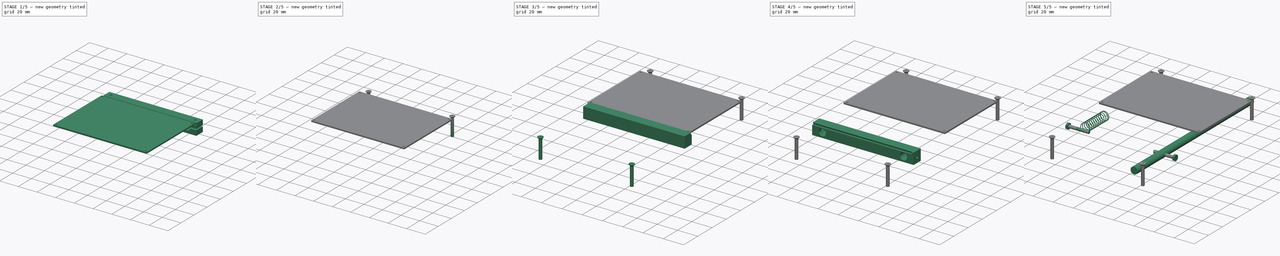
[diagram: build sequence overview — one tinted view per stage of 5, left to right]
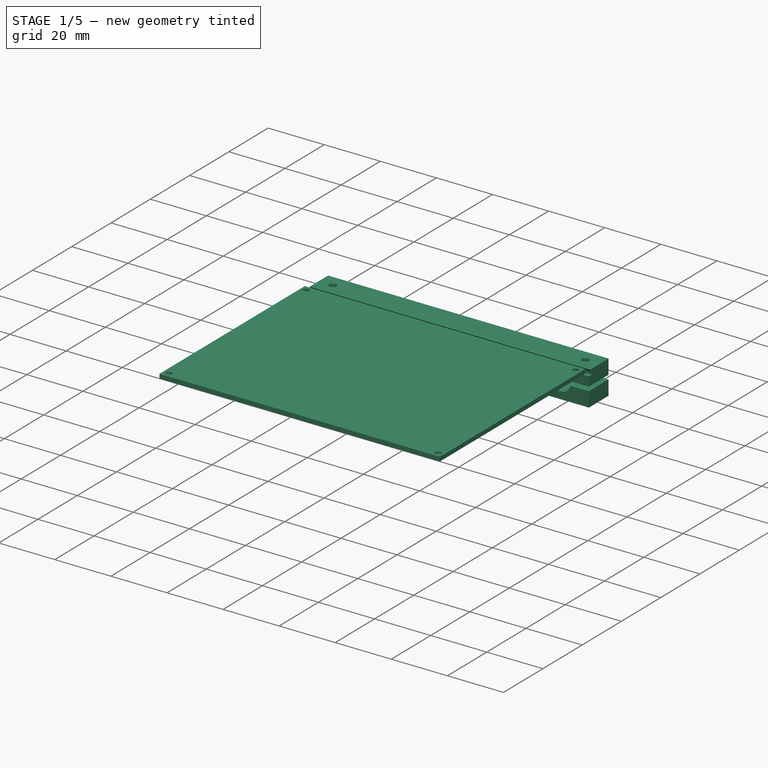
[diagram: stage 1 of 5 — iso view after this stage's code; geometry added in this stage tinted green]
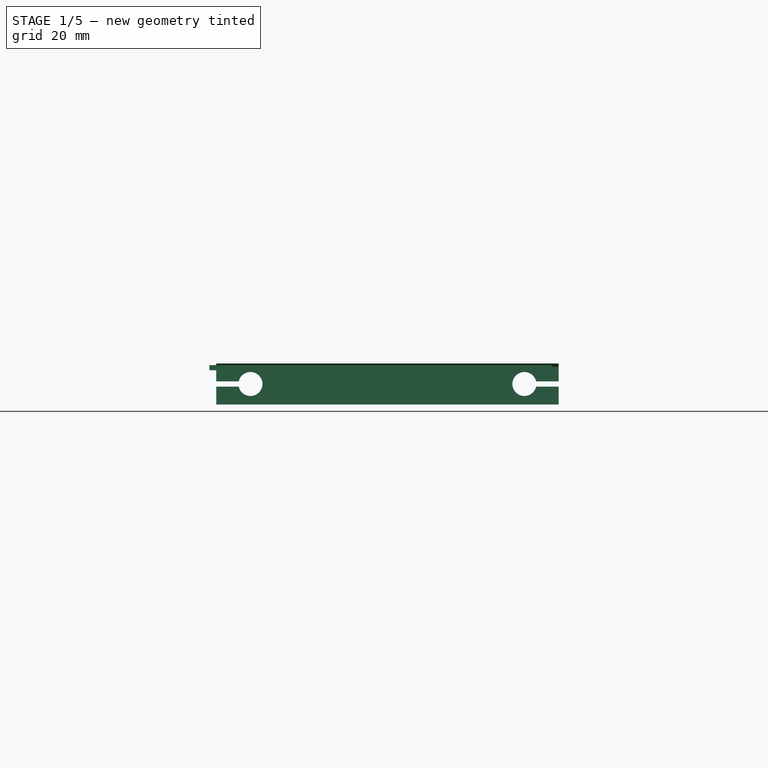
[diagram: stage 1 of 5 — front view after this stage's code; geometry added in this stage tinted green]
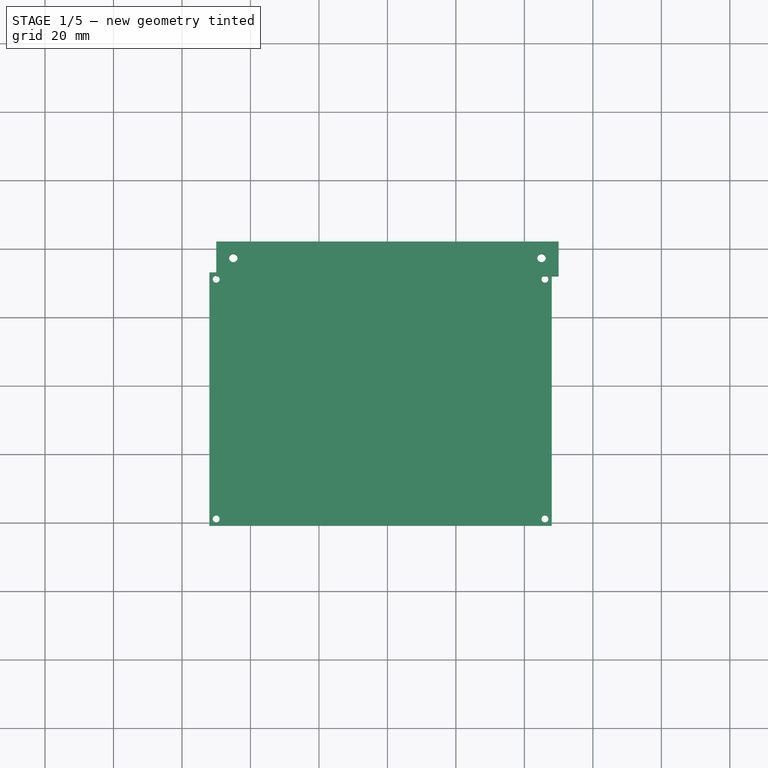
[diagram: stage 1 of 5 — top view after this stage's code; geometry added in this stage tinted green]
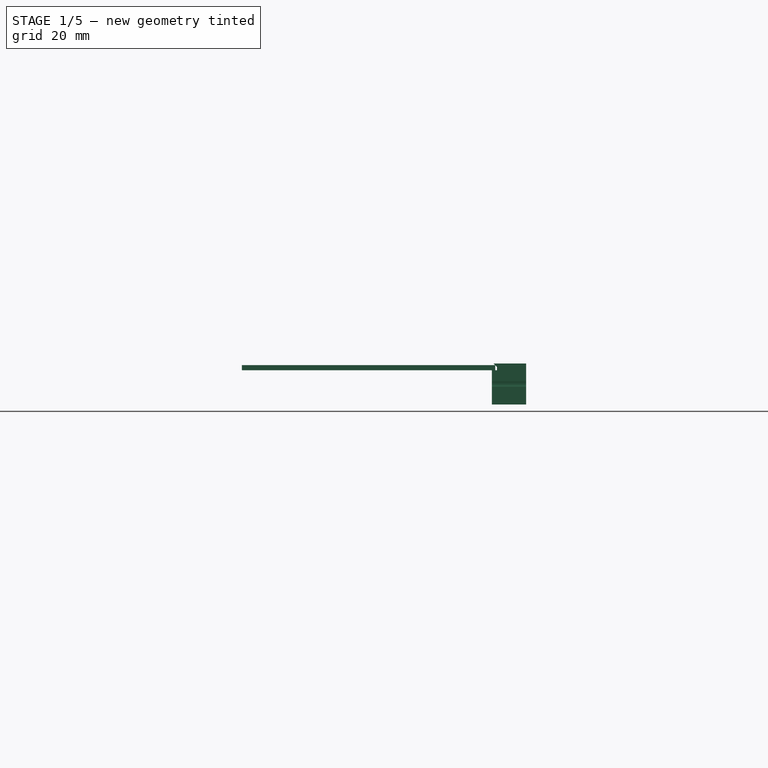
[diagram: stage 1 of 5 — right view after this stage's code; geometry added in this stage tinted green]
FCSTD DOCUMENT  (FreeCAD 0.15R4671 (Git))
Label: table-pcb-holder
License: CreativeCommons Attribution-ShareAlike
LicenseURL: http://creativecommons.org/licenses/by-sa/4.0/
objects: Sketcher::SketchObject×10, PartDesign::Pocket×6, Part::FeaturePython×6, PartDesign::Pad×4, Part::Mirroring×4, Part::Cylinder×1, PartDesign::Chamfer×1, PartDesign::LinearPattern×1, Part::Feature×1, Part::Box×1
note: 45 computed .brp shape members not serialized (recipe doc carries the construction recipe); baked Part::Feature solids carry a one-line shape summary decoded from their .brp

FEATURE [Sketcher::SketchObject] Sketch004  label="fixed"
  Placement = pos=(0,72,0) rot=(0.57735,0.57735,0.57735;2.0944rad)
  sketch-geometry (7):
    g0: LineSegment StartX=0 StartY=10 StartZ=0 EndX=1.5 EndY=10 EndZ=0
    g1: LineSegment StartX=1.5 StartY=10 StartZ=0 EndX=1.5 EndY=11 EndZ=0
    g2: LineSegment StartX=1.5 StartY=11 StartZ=0 EndX=0.5 EndY=12 EndZ=0
    g3: LineSegment StartX=0.5 StartY=12 StartZ=0 EndX=10 EndY=12 EndZ=0
    g4: LineSegment StartX=10 StartY=12 StartZ=0 EndX=10 EndY=0 EndZ=0
    g5: LineSegment StartX=10 StartY=0 StartZ=0 EndX=0 EndY=0 EndZ=0
    g6: LineSegment StartX=0 StartY=0 StartZ=0 EndX=0 EndY=10 EndZ=0
  constraints (21):
    c: Horizontal(g0)
    c: Coincident(g0,g1)
    c: Vertical(g1)
    c: Coincident(g1,g2)
    c: Coincident(g2,g3)
    c: Horizontal(g3)
    c: Coincident(g3,g4)
    c: Vertical(g4)
    c: Coincident(g4,g5)
    c: Horizontal(g5)
    c: Coincident(g5,g6)
    c: Coincident(g6,g0)
    c: Vertical(g6)
    c: DistanceX(g5) = -10
    c: DistanceX(g0) = 1.5
    c: DistanceY(g1) = 1
    c: DistanceX(g2,g1) = 1
    c: DistanceY(g2,g1) = -1
    c: DistanceY(g5) = 0
    c: DistanceY(g6) = 10
    c: DistanceX(g5) = 0
FEATURE [PartDesign::Pad] Pad003  label="fixed"
  Length = 100
  Length2 = 100
  Midplane = true
  Placement = pos=(0,72,0) rot=(0.57735,0.57735,0.57735;2.0944rad)
  Sketch = -> Sketch004
  Type = 0
FEATURE [Sketcher::SketchObject] Sketch006
  ExternalGeometry = -> [Pad003]
  Placement = pos=(0,82,0) rot=(0.57735,0.57735,0.57735;4.18879rad)
  Support = -> Pad003 [Face5]
  sketch-geometry (11):
    g0: ArcOfCircle CenterX=6 CenterY=40 CenterZ=0 NormalX=0 NormalY=0 NormalZ=1 Radius=3.5 StartAngle=1.78676 EndAngle=7.63802
    g1: ArcOfCircle CenterX=6 CenterY=-40 CenterZ=0 NormalX=0 NormalY=0 NormalZ=1 Radius=3.5 StartAngle=4.92835 EndAngle=10.7796
    g2: LineSegment [constr] StartX=12 StartY=50 StartZ=0 EndX=6 EndY=40 EndZ=0
    g3: LineSegment [constr] StartX=6 StartY=40 StartZ=0 EndX=6 EndY=-40 EndZ=0
    g4: LineSegment [constr] StartX=6 StartY=-40 StartZ=0 EndX=12 EndY=-50 EndZ=0
    g5: LineSegment StartX=5.25 StartY=50.4187 StartZ=0 EndX=6.75 EndY=50.4187 EndZ=0
    g6: LineSegment StartX=6.75 StartY=50.4187 StartZ=0 EndX=6.75 EndY=43.4187 EndZ=0
    g7: LineSegment StartX=5.25 StartY=43.4187 StartZ=0 EndX=5.25 EndY=50.4187 EndZ=0
    g8: LineSegment StartX=5.25 StartY=-43.4187 StartZ=0 EndX=5.25 EndY=-50.4187 EndZ=0
    g9: LineSegment StartX=5.25 StartY=-50.4187 StartZ=0 EndX=6.75 EndY=-50.4187 EndZ=0
    g10: LineSegment StartX=6.75 StartY=-50.4187 StartZ=0 EndX=6.75 EndY=-43.4187 EndZ=0
  constraints (32):
    c: Coincident(g2,g0)
    c: Coincident(g2,g3)
    c: Coincident(g3,g1)
    c: Vertical(g3)
    c: Coincident(g3,g4)
    c: Equal(g4,g2)
    c: Equal(g0,g1)
    c: Radius(g0) = 3.5
    c: Coincident(g2,g-3)
    c: Coincident(g4,g-3)
    c: DistanceY(g1,g4) = -10
    c: Distance(g0,g-3) = 6
    c: Coincident(g5,g6)
    c: Coincident(g7,g5)
    c: Horizontal(g5)
    c: Vertical(g6)
    c: Vertical(g7)
    c: DistanceX(g5) = 1.5
    c: Coincident(g0,g7)
    c: Coincident(g0,g6)
    c: DistanceY(g0,g0) = 0
    c: DistanceY(g6) = -7
    c: Vertical(g8)
    c: Coincident(g8,g9)
    c: Horizontal(g9)
    c: Coincident(g9,g10)
    c: Vertical(g10)
    c: Equal(g9,g5)
    c: Equal(g8,g7)
    c: Coincident(g1,g10)
    c: Coincident(g1,g8)
    c: DistanceY(g1,g1) = 0
FEATURE [PartDesign::Pocket] Pocket002
  Length = 5
  Placement = pos=(0,72,0) rot=(0.57735,0.57735,0.57735;2.0944rad)
  Sketch = -> Sketch006
  Type = 1
FEATURE [Sketcher::SketchObject] Sketch
  ExternalGeometry = -> [Pocket002]
  Placement = pos=(0,72,12) rot=(0,0,-1;1.5708rad)
  Support = -> Pocket002 [Face17]
  sketch-geometry (6):
    g0: Circle CenterX=-5.25 CenterY=45 CenterZ=0 NormalX=0 NormalY=0 NormalZ=1 Radius=1.25
    g1: Circle CenterX=-5.25 CenterY=-45 CenterZ=0 NormalX=0 NormalY=0 NormalZ=1 Radius=1.25
    g2: LineSegment [constr] StartX=-10 StartY=50 StartZ=0 EndX=-5.25 EndY=45 EndZ=0
    g3: LineSegment [constr] StartX=-5.25 StartY=45 StartZ=0 EndX=-5.25 EndY=-45 EndZ=0
    g4: LineSegment [constr] StartX=-5.25 StartY=-45 StartZ=0 EndX=-0.5 EndY=-50 EndZ=0
    g5: LineSegment [constr] StartX=-10 StartY=-50 StartZ=0 EndX=-5.25 EndY=-45 EndZ=0
  constraints (14):
    c: Equal(g1,g0)
    c: Coincident(g-3,g2)
    c: Coincident(g2,g3)
    c: Coincident(g3,g1)
    c: Vertical(g3)
    c: Coincident(g3,g4)
    c: Coincident(g4,g-4)
    c: Coincident(g0,g2)
    c: Radius(g0) = 1.25
    c: Coincident(g5,g-4)
    c: Coincident(g5,g1)
    c: Equal(g5,g4)
    c: Equal(g4,g2)
    c: Distance(g1,g-4) = 5
FEATURE [PartDesign::Pocket] Pocket
  Length = 5
  Placement = pos=(0,72,0) rot=(0.57735,0.57735,0.57735;2.0944rad)
  Sketch = -> Sketch
  Type = 1
FEATURE [Part::Box] Box  label="pcb"
  Height = 1.5
  Length = 100
  Placement = pos=(-52,-1,10) rot=(0,0,1;0rad)
  Width = 74
FEATURE [Sketcher::SketchObject] Sketch011
  ExternalGeometry = -> [Box]
  Placement = pos=(-52,-1,11.5) rot=(0,0,1;0rad)
  Support = -> Box [Face6]
  sketch-geometry (11):
    g0: LineSegment [constr] StartX=2 StartY=72 StartZ=0 EndX=98 EndY=72 EndZ=0
    g1: LineSegment [constr] StartX=98 StartY=72 StartZ=0 EndX=98 EndY=2 EndZ=0
    g2: LineSegment [constr] StartX=98 StartY=2 StartZ=0 EndX=2 EndY=2 EndZ=0
    g3: LineSegment [constr] StartX=2 StartY=2 StartZ=0 EndX=2 EndY=72 EndZ=0
    g4: LineSegment [constr] StartX=0 StartY=74 StartZ=0 EndX=2 EndY=72 EndZ=0
    g5: LineSegment [constr] StartX=100 StartY=74 StartZ=0 EndX=98 EndY=72 EndZ=0
    g6: LineSegment [constr] StartX=100 StartY=0 StartZ=0 EndX=98 EndY=2 EndZ=0
    g7: Circle CenterX=98 CenterY=72 CenterZ=0 NormalX=0 NormalY=0 NormalZ=1 Radius=1
    g8: Circle CenterX=2 CenterY=2 CenterZ=0 NormalX=0 NormalY=0 NormalZ=1 Radius=1
    g9: Circle CenterX=98 CenterY=2 CenterZ=0 NormalX=0 NormalY=0 NormalZ=1 Radius=1
    g10: Circle CenterX=2 CenterY=72 CenterZ=0 NormalX=0 NormalY=0 NormalZ=1 Radius=1
  constraints (26):
    c: Coincident(g0,g1)
    c: Coincident(g1,g2)
    c: Coincident(g2,g3)
    c: Coincident(g3,g0)
    c: Horizontal(g0)
    c: Horizontal(g2)
    c: Vertical(g1)
    c: Vertical(g3)
    c: Coincident(g4,g-4)
    c: Coincident(g4,g0)
    c: Coincident(g5,g-3)
    c: Coincident(g5,g0)
    c: Coincident(g6,g-3)
    c: Coincident(g6,g1)
    c: Equal(g4,g5)
    c: Equal(g5,g6)
    c: Distance(g0,g-3) = 2
    c: DistanceY(g0,g5) = 2
    c: Coincident(g7,g0)
    c: Radius(g7) = 1
    c: Coincident(g8,g2)
    c: Coincident(g10,g0)
    c: Equal(g10,g8)
    c: Equal(g8,g9)
    c: Equal(g9,g7)
    c: Coincident(g9,g1)
FEATURE [PartDesign::Pocket] Pocket005
  Length = 5
  Placement = pos=(-52,-1,10) rot=(0,0,1;0rad)
  Sketch = -> Sketch011
  Type = 1
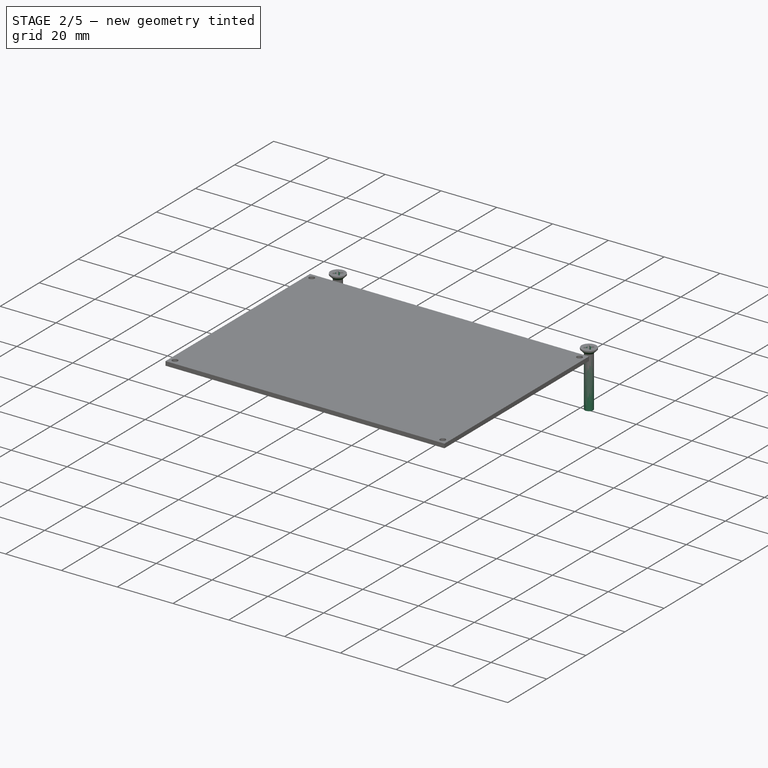
[diagram: stage 2 of 5 — iso view after this stage's code; geometry added in this stage tinted green]
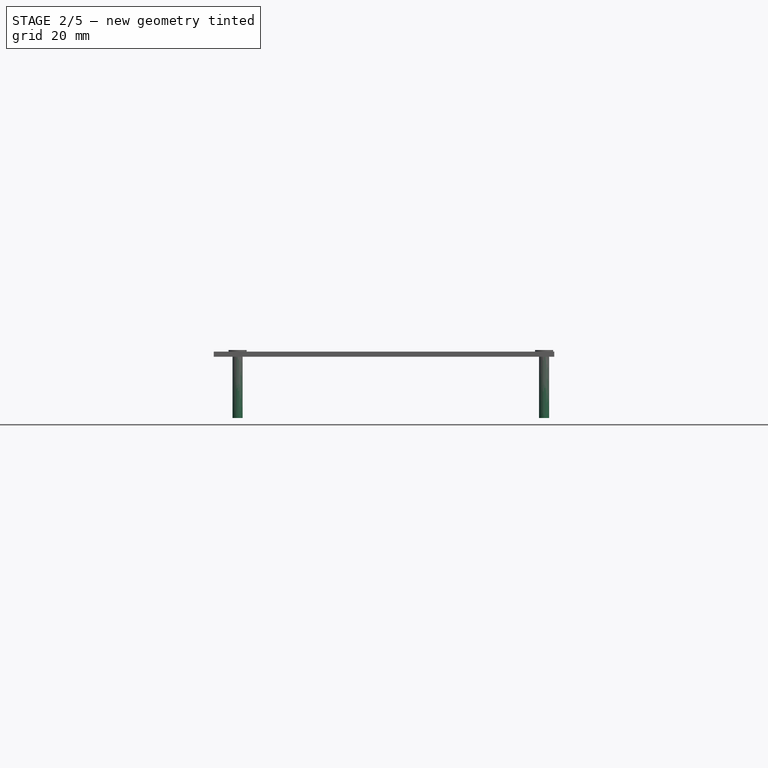
[diagram: stage 2 of 5 — front view after this stage's code; geometry added in this stage tinted green]
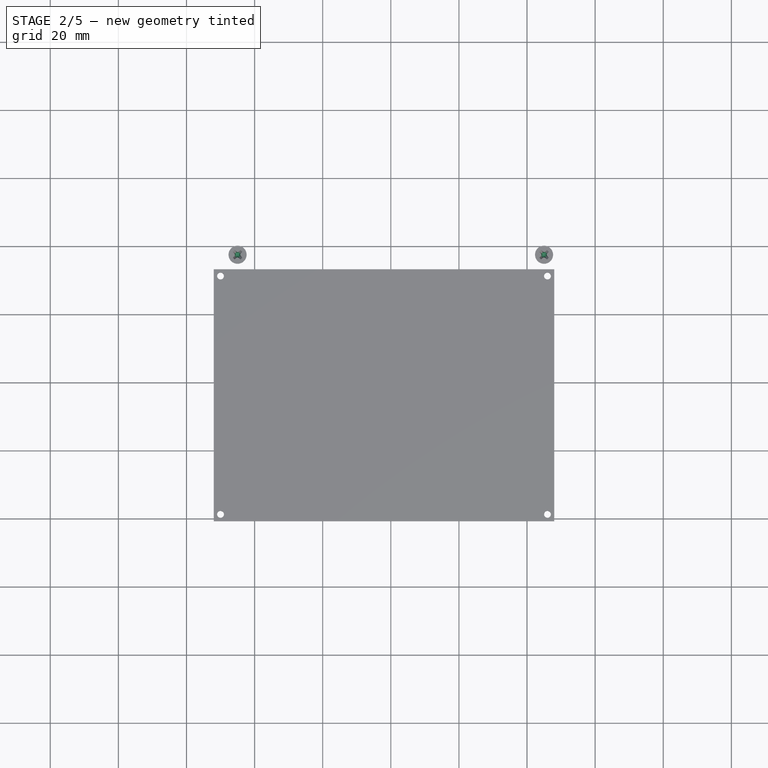
[diagram: stage 2 of 5 — top view after this stage's code; geometry added in this stage tinted green]
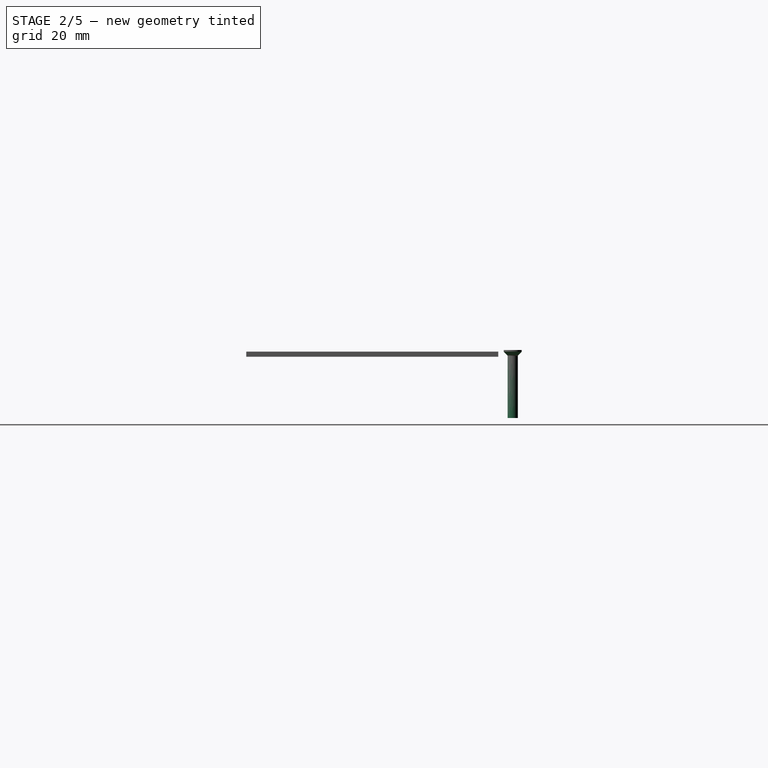
[diagram: stage 2 of 5 — right view after this stage's code; geometry added in this stage tinted green]
FEATURE [Sketcher::SketchObject] Sketch007
  ExternalGeometry = -> [Pocket]
  Placement = pos=(0,72,12) rot=(0,0,-1;1.5708rad)
  Support = -> Pocket [Face17]
  sketch-geometry (2):
    g0: Circle CenterX=-5.25 CenterY=-45 CenterZ=0 NormalX=0 NormalY=0 NormalZ=1 Radius=1.6
    g1: Circle CenterX=-5.25 CenterY=45 CenterZ=0 NormalX=0 NormalY=0 NormalZ=1 Radius=1.6
  constraints (4):
    c: Coincident(g0,g-3)
    c: Coincident(g1,g-4)
    c: Equal(g1,g0)
    c: Radius(g1) = 1.6
FEATURE [PartDesign::Pocket] Pocket003
  Length = 6
  Placement = pos=(0,72,0) rot=(0.57735,0.57735,0.57735;2.0944rad)
  Sketch = -> Sketch007
  Type = 0
FEATURE [PartDesign::Chamfer] Chamfer
  Base = -> Pocket003 [Edge60,Edge61]
  Placement = pos=(0,72,0) rot=(0.57735,0.57735,0.57735;2.0944rad)
  Size = 1.5
FEATURE [Sketcher::SketchObject] Sketch009
  ExternalGeometry = -> [Chamfer]
  Placement = pos=(50,72,0) rot=(0.57735,0.57735,0.57735;2.0944rad)
  Support = -> Chamfer [Face5]
  sketch-geometry (4):
    g0: LineSegment StartX=0 StartY=10 StartZ=0 EndX=1.5 EndY=10 EndZ=0
    g1: LineSegment StartX=1.5 StartY=10 StartZ=0 EndX=1.5 EndY=12 EndZ=0
    g2: LineSegment StartX=1.5 StartY=12 StartZ=0 EndX=0 EndY=12 EndZ=0
    g3: LineSegment StartX=0 StartY=12 StartZ=0 EndX=0 EndY=10 EndZ=0
  constraints (11):
    c: Coincident(g0,g1)
    c: Coincident(g1,g2)
    c: Coincident(g2,g3)
    c: Coincident(g3,g0)
    c: Horizontal(g0)
    c: Horizontal(g2)
    c: Vertical(g1)
    c: Vertical(g3)
    c: Coincident(g0,g-3)
    c: DistanceY(g1) = 2
    c: Coincident(g0,g-3)
FEATURE [PartDesign::Pad] Pad
  Length = 2
  Length2 = 100
  Placement = pos=(0,72,0) rot=(0.57735,0.57735,0.57735;2.0944rad)
  Reversed = true
  Sketch = -> Sketch009
  Type = 0
FEATURE [Part::FeaturePython] Screw004  label="M3x20-Screw"  # Fasteners workbench fastener (typed FeaturePython)
  Placement = pos=(-45,77.25,12) rot=(0,0,1;0rad)
  baseObject = -> Pad [Edge65]
  diameter = 4
  invert = false
  length = 8
  matchOuter = false
  offset = 0
  thread = false
  type = 17
FEATURE [Part::FeaturePython] Screw005  label="M3x20-Screw"  # Fasteners workbench fastener (typed FeaturePython)
  Placement = pos=(45,77.25,12) rot=(0,0,1;0rad)
  baseObject = -> Pad [Edge2]
  diameter = 4
  invert = false
  length = 8
  matchOuter = false
  offset = 0
  thread = false
  type = 17
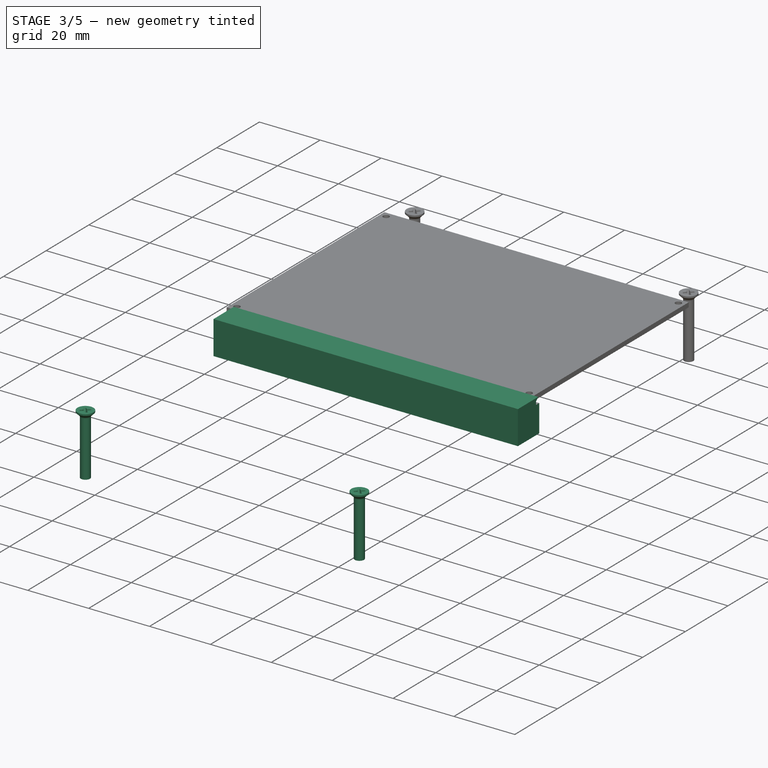
[diagram: stage 3 of 5 — iso view after this stage's code; geometry added in this stage tinted green]
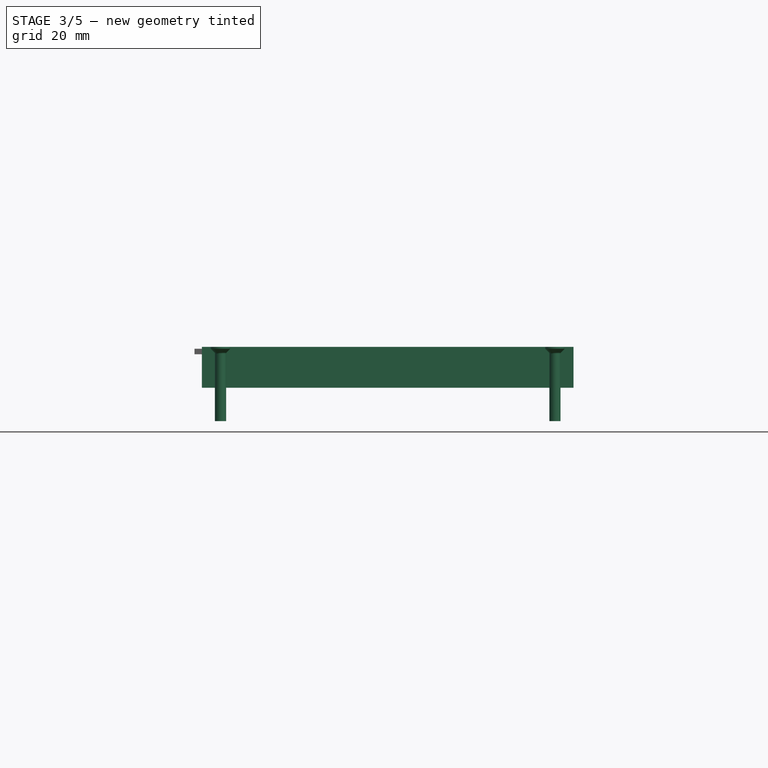
[diagram: stage 3 of 5 — front view after this stage's code; geometry added in this stage tinted green]
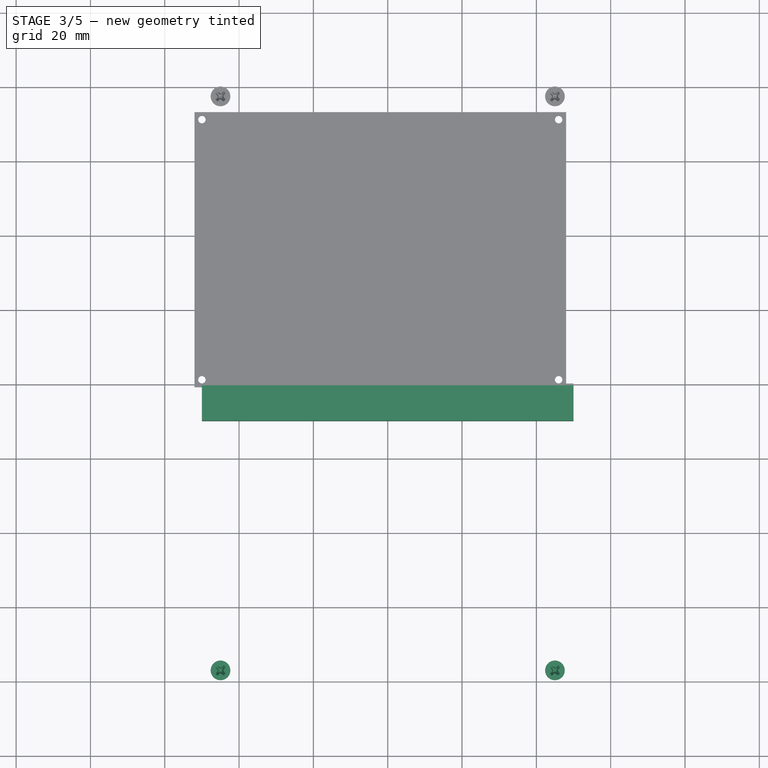
[diagram: stage 3 of 5 — top view after this stage's code; geometry added in this stage tinted green]
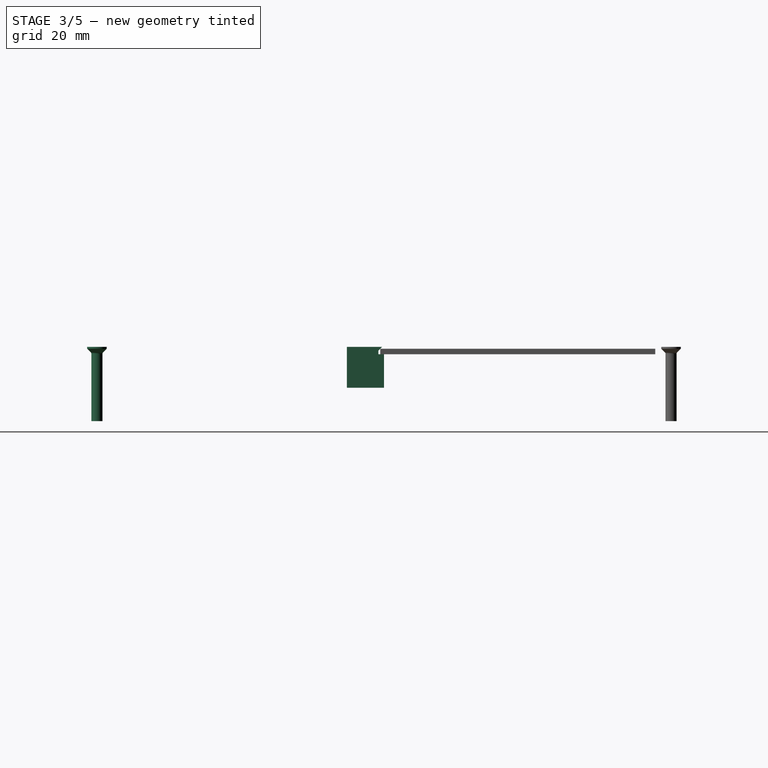
[diagram: stage 3 of 5 — right view after this stage's code; geometry added in this stage tinted green]
FEATURE [Sketcher::SketchObject] Sketch003  label="moving"
  Placement = pos=(0,0,0) rot=(0.57735,0.57735,0.57735;2.0944rad)
  sketch-geometry (7):
    g0: LineSegment StartX=-10 StartY=1 StartZ=0 EndX=-10 EndY=12 EndZ=0
    g1: LineSegment StartX=-10 StartY=12 StartZ=0 EndX=-0.5 EndY=12 EndZ=0
    g2: LineSegment StartX=-0.5 StartY=12 StartZ=0 EndX=-1.5 EndY=11 EndZ=0
    g3: LineSegment StartX=-1.5 StartY=11 StartZ=0 EndX=-1.5 EndY=10 EndZ=0
    g4: LineSegment StartX=-1.5 StartY=10 StartZ=0 EndX=0 EndY=10 EndZ=0
    g5: LineSegment StartX=0 StartY=10 StartZ=0 EndX=0 EndY=1 EndZ=0
    g6: LineSegment StartX=0 StartY=1 StartZ=0 EndX=-10 EndY=1 EndZ=0
  constraints (21):
    c: Vertical(g0)
    c: Coincident(g0,g1)
    c: Horizontal(g1)
    c: Coincident(g1,g2)
    c: Coincident(g2,g3)
    c: Coincident(g3,g4)
    c: Horizontal(g4)
    c: Coincident(g4,g5)
    c: Vertical(g5)
    c: Coincident(g5,g6)
    c: Coincident(g6,g0)
    c: Horizontal(g6)
    c: Vertical(g3)
    c: Distance(g4) = 1.5
    c: DistanceY(g3) = -1
    c: DistanceY(g1,g2) = -1
    c: DistanceX(g1,g2) = -1
    c: DistanceX(g6) = -10
    c: DistanceY(g5) = -9
    c: DistanceY(g4) = 10
    c: DistanceX(g5) = 0
FEATURE [PartDesign::Pad] Pad002  label="moving"
  Length = 100
  Length2 = 100
  Midplane = true
  Placement = pos=(0,0,0) rot=(0.57735,0.57735,0.57735;2.0944rad)
  Sketch = -> Sketch003
  Type = 0
FEATURE [Part::Mirroring] Part__Mirroring001  label="Pad (Mirror #2)"
  Base = (0,0,0)
  Normal = (0,0,1)
  Placement = pos=(0,0,0) rot=(1,0,0;3.14159rad)
  Source = -> Pad
FEATURE [Part::FeaturePython] Screw002  label="M3x20-Screw"  # Fasteners workbench fastener (typed FeaturePython)
  Placement = pos=(45,-77.25,12) rot=(0,0,1;0rad)
  baseObject = -> Part__Mirroring001 [Edge2]
  diameter = 4
  invert = true
  length = 8
  matchOuter = false
  offset = 0
  thread = false
  type = 17
FEATURE [Part::FeaturePython] Screw003  label="M3x20-Screw"  # Fasteners workbench fastener (typed FeaturePython)
  Placement = pos=(-45,-77.25,12) rot=(0,0,1;0rad)
  baseObject = -> Part__Mirroring001 [Edge65]
  diameter = 4
  invert = true
  length = 8
  matchOuter = false
  offset = 0
  thread = false
  type = 17
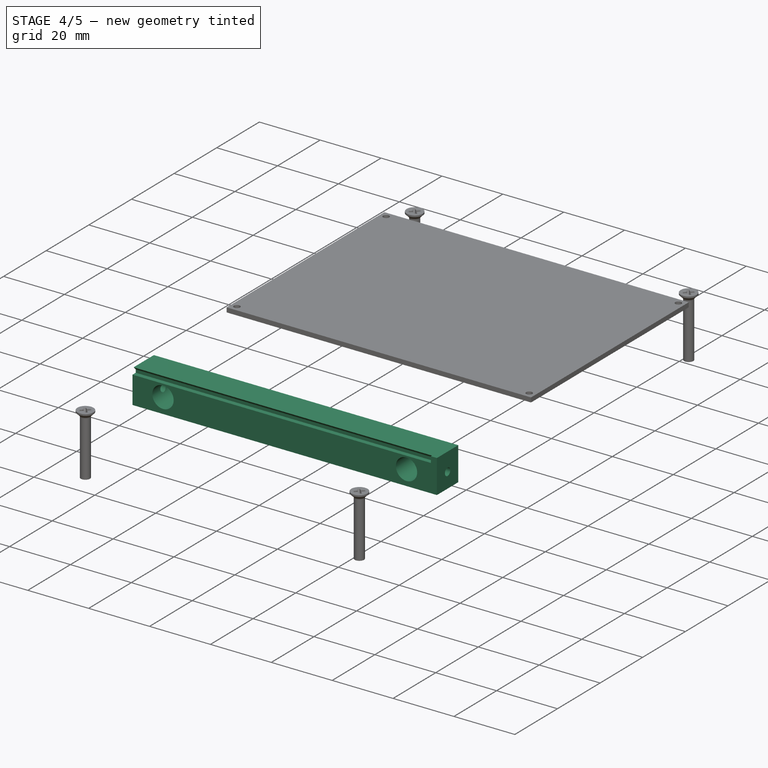
[diagram: stage 4 of 5 — iso view after this stage's code; geometry added in this stage tinted green]
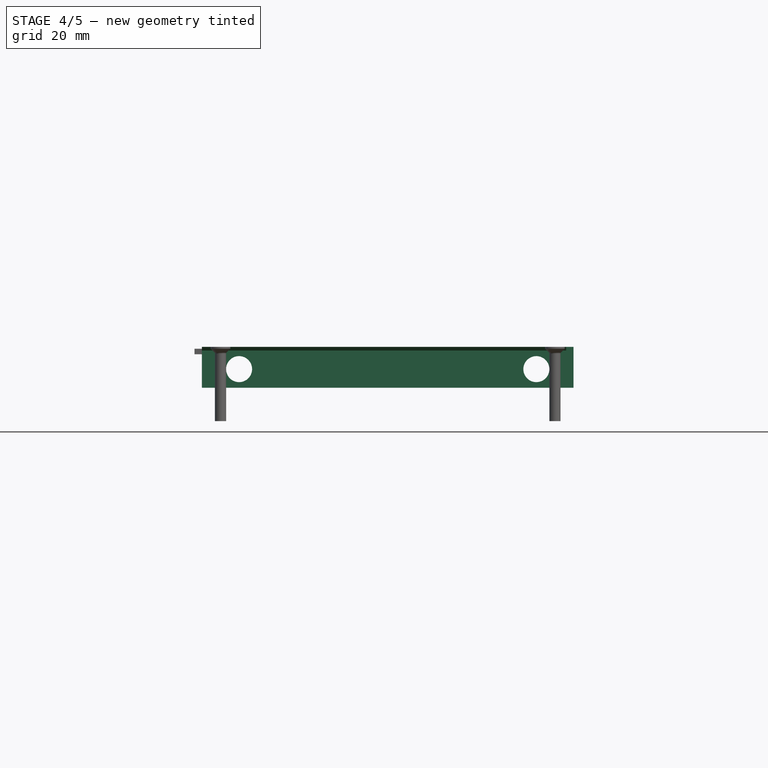
[diagram: stage 4 of 5 — front view after this stage's code; geometry added in this stage tinted green]
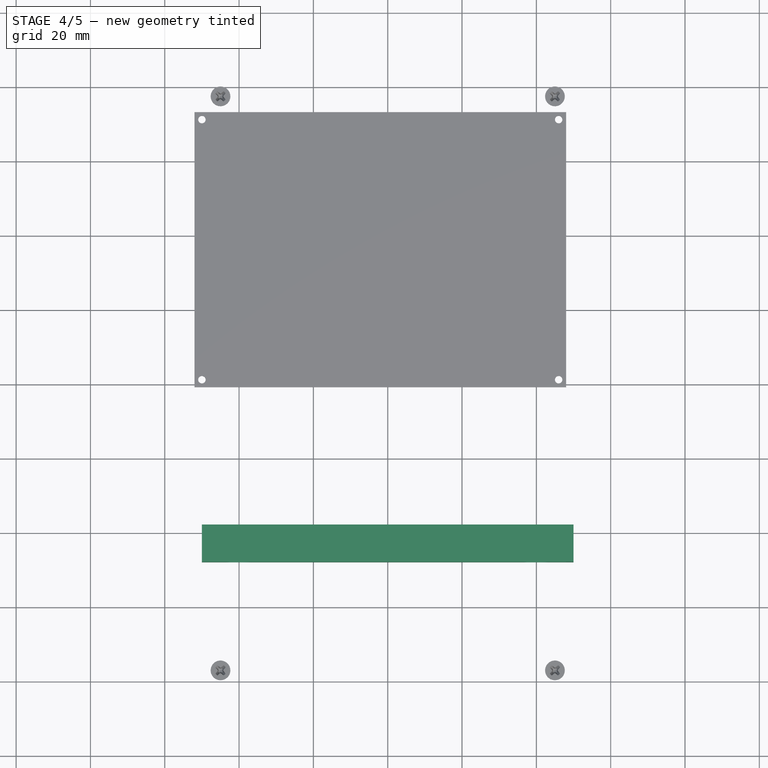
[diagram: stage 4 of 5 — top view after this stage's code; geometry added in this stage tinted green]
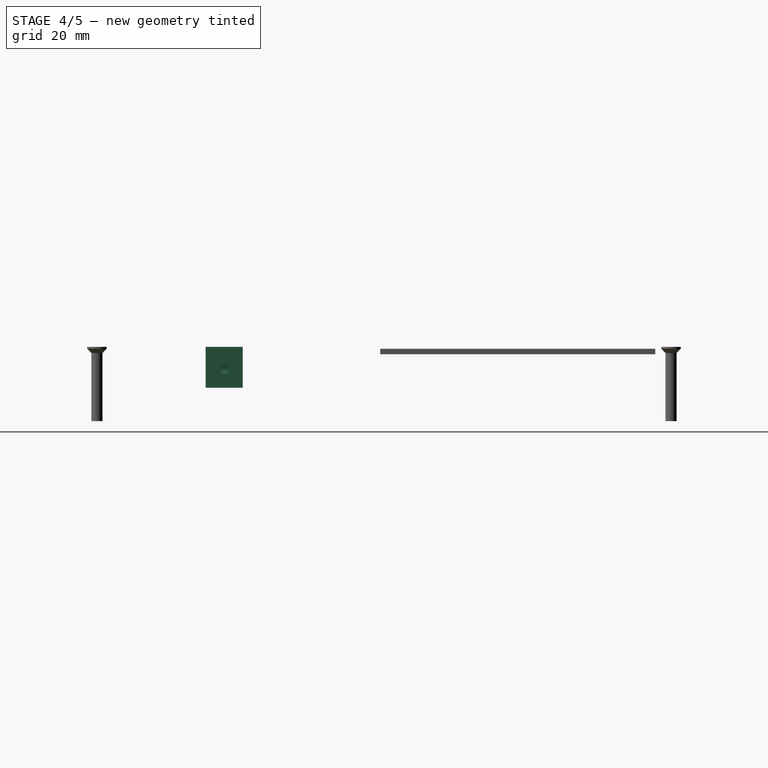
[diagram: stage 4 of 5 — right view after this stage's code; geometry added in this stage tinted green]
FEATURE [Sketcher::SketchObject] Sketch005
  ExternalGeometry = -> [Pad002]
  Placement = pos=(0,-10,0) rot=(-0.57735,-0.57735,0.57735;4.18879rad)
  Support = -> Pad002 [Face1]
  sketch-geometry (5):
    g0: Circle CenterX=-6 CenterY=40 CenterZ=0 NormalX=0 NormalY=0 NormalZ=1 Radius=3.5
    g1: Circle CenterX=-6 CenterY=-40 CenterZ=0 NormalX=0 NormalY=0 NormalZ=1 Radius=3.5
    g2: LineSegment [constr] StartX=-12 StartY=50 StartZ=0 EndX=-6 EndY=40 EndZ=0
    g3: LineSegment [constr] StartX=-6 StartY=40 StartZ=0 EndX=-6 EndY=-40 EndZ=0
    g4: LineSegment [constr] StartX=-6 StartY=-40 StartZ=0 EndX=-12 EndY=-50 EndZ=0
  constraints (12):
    c: Coincident(g-4,g2)
    c: Coincident(g2,g0)
    c: Coincident(g2,g3)
    c: Coincident(g3,g1)
    c: Vertical(g3)
    c: Coincident(g3,g4)
    c: Coincident(g4,g-3)
    c: Equal(g4,g2)
    c: Equal(g0,g1)
    c: Radius(g0) = 3.5
    c: Distance(g1,g-3) = 10
    c: DistanceX(g0,g2) = -6
FEATURE [PartDesign::Pocket] Pocket001
  Length = 5
  Placement = pos=(0,0,0) rot=(0.57735,0.57735,0.57735;2.0944rad)
  Sketch = -> Sketch005
  Type = 1
FEATURE [Sketcher::SketchObject] Sketch008
  ExternalGeometry = -> [Pocket001]
  Placement = pos=(50,0,0) rot=(0.57735,0.57735,0.57735;2.0944rad)
  Support = -> Pocket001 [Face4]
  sketch-geometry (3):
    g0: Circle CenterX=-5 CenterY=6 CenterZ=0 NormalX=0 NormalY=0 NormalZ=1 Radius=1.25
    g1: LineSegment [constr] StartX=-10 StartY=1 StartZ=0 EndX=-5 EndY=6 EndZ=0
    g2: LineSegment [constr] StartX=-5 StartY=6 StartZ=0 EndX=0 EndY=1 EndZ=0
  constraints (7):
    c: Radius(g0) = 1.25
    c: Coincident(g-3,g1)
    c: Coincident(g1,g0)
    c: Coincident(g1,g2)
    c: Coincident(g2,g-3)
    c: Distance(g0,g-3) = 5
    c: Equal(g1,g2)
FEATURE [PartDesign::Pocket] Pocket004
  Length = 10
  Placement = pos=(0,0,0) rot=(0.57735,0.57735,0.57735;2.0944rad)
  Sketch = -> Sketch008
  Type = 0
FEATURE [PartDesign::LinearPattern] LinearPattern  label="moving"
  Direction = -> Pocket004 [Face4]
  Length = 93
  Occurrences = 2
  Originals = -> [Pocket004]
  Placement = pos=(0,0,0) rot=(0.57735,0.57735,0.57735;2.0944rad)
  Reversed = true
FEATURE [Sketcher::SketchObject] Sketch010
  ExternalGeometry = -> [LinearPattern]
  Placement = pos=(50,0,0) rot=(0.57735,0.57735,0.57735;2.0944rad)
  Support = -> LinearPattern [Face4]
  sketch-geometry (4):
    g0: LineSegment StartX=0 StartY=10 StartZ=0 EndX=-1.5 EndY=10 EndZ=0
    g1: LineSegment StartX=-1.5 StartY=10 StartZ=0 EndX=-1.5 EndY=12 EndZ=0
    g2: LineSegment StartX=-1.5 StartY=12 StartZ=0 EndX=0 EndY=12 EndZ=0
    g3: LineSegment StartX=0 StartY=12 StartZ=0 EndX=0 EndY=10 EndZ=0
  constraints (11):
    c: Coincident(g0,g1)
    c: Coincident(g1,g2)
    c: Coincident(g2,g3)
    c: Coincident(g3,g0)
    c: Horizontal(g0)
    c: Horizontal(g2)
    c: Vertical(g1)
    c: Vertical(g3)
    c: Coincident(g0,g-3)
    c: Coincident(g0,g-3)
    c: PointOnObject(g1,g-4)
FEATURE [PartDesign::Pad] Pad004  label="moving"
  Length = 2
  Length2 = 100
  Placement = pos=(0,0,0) rot=(0.57735,0.57735,0.57735;2.0944rad)
  Reversed = true
  Sketch = -> Sketch010
  Type = 0
FEATURE [Part::Mirroring] Part__Mirroring002  label="moving"
  Base = (0,0,0)
  Normal = (0,1,0)
  Placement = pos=(0,-48,0) rot=(0,0,1;0rad)
  Source = -> Pad004
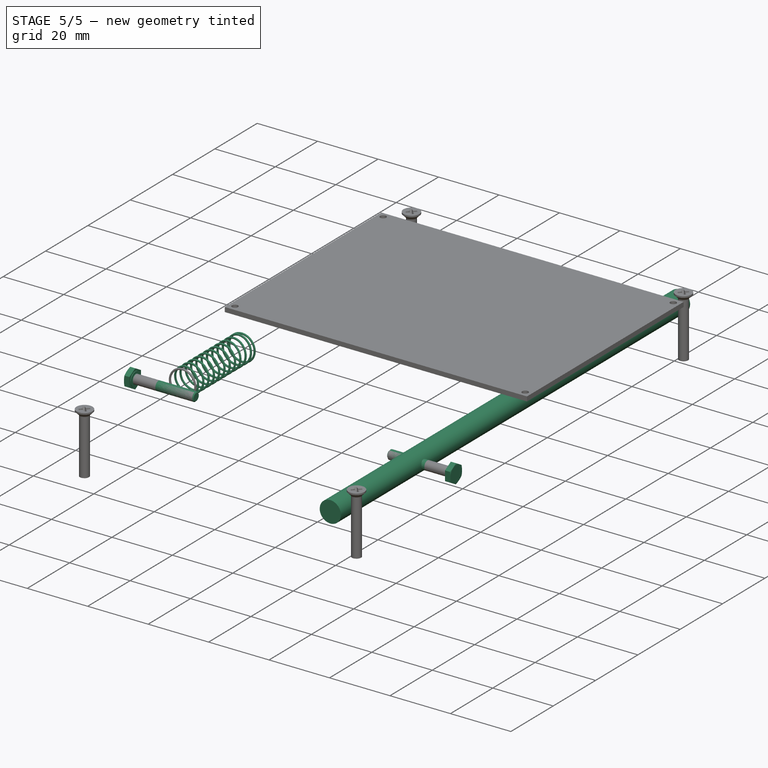
[diagram: stage 5 of 5 — iso view after this stage's code; geometry added in this stage tinted green]
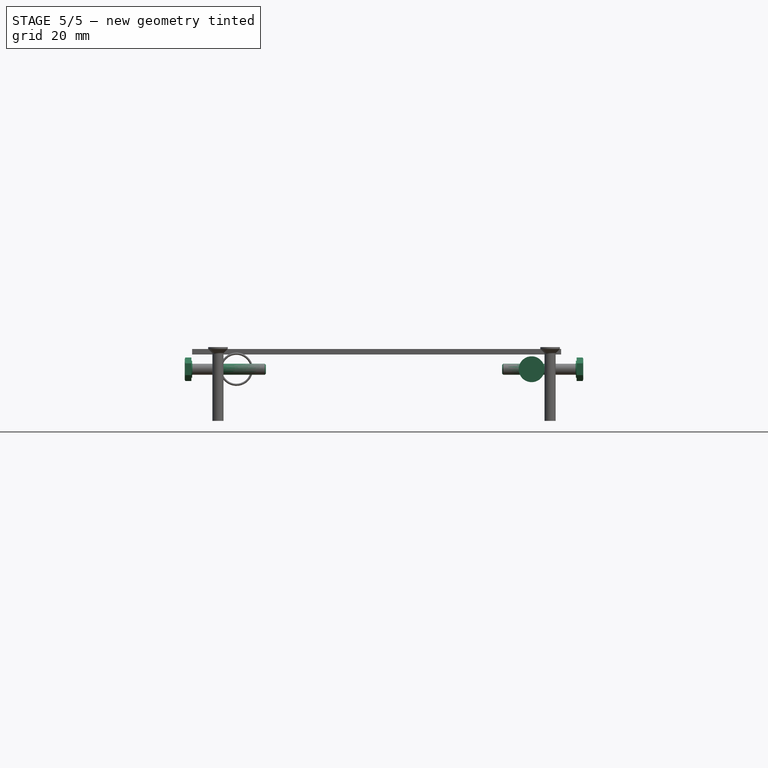
[diagram: stage 5 of 5 — front view after this stage's code; geometry added in this stage tinted green]
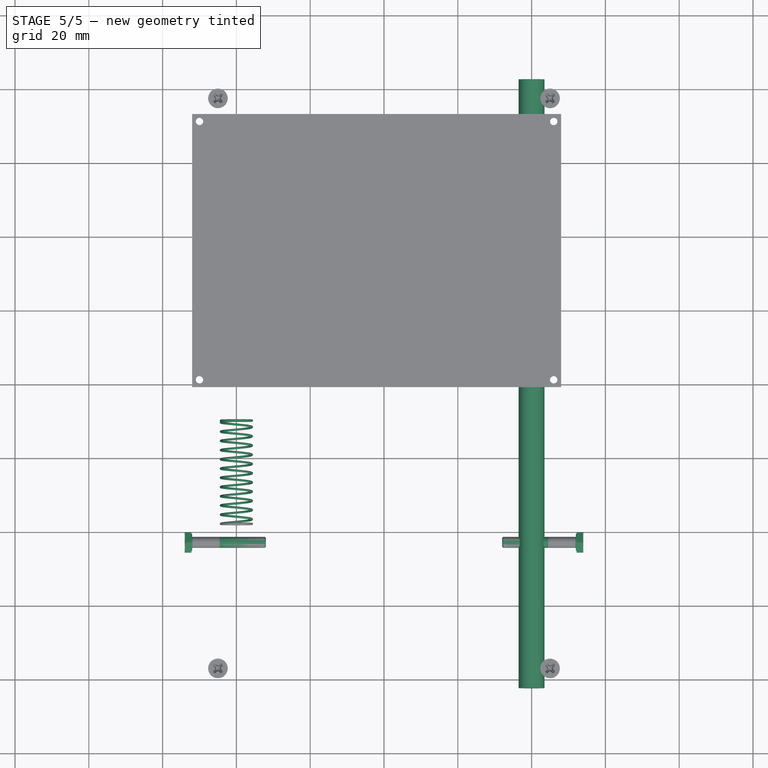
[diagram: stage 5 of 5 — top view after this stage's code; geometry added in this stage tinted green]
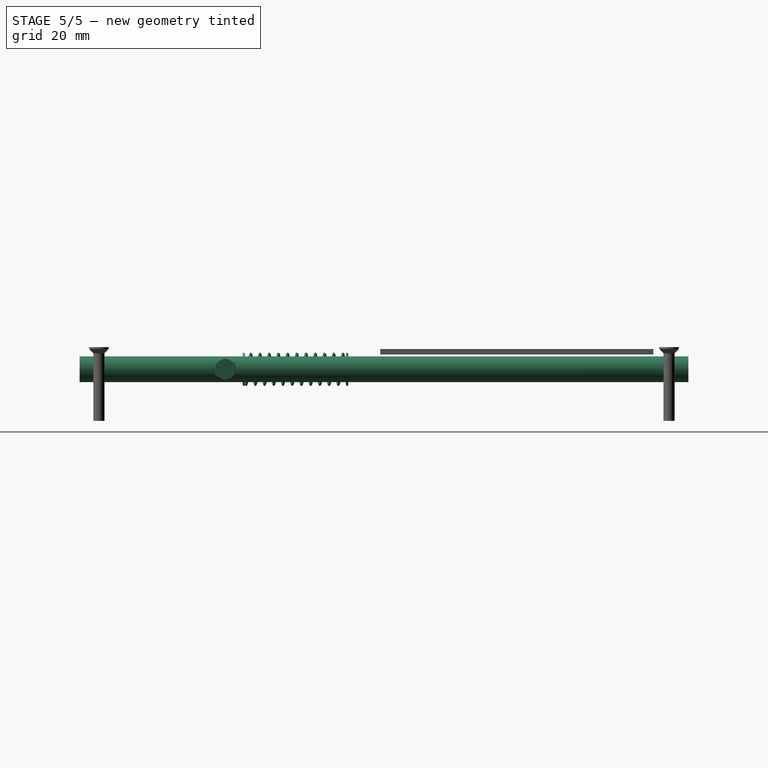
[diagram: stage 5 of 5 — right view after this stage's code; geometry added in this stage tinted green]
FEATURE [Part::Cylinder] Cylinder
  Angle = 360
  Height = 165
  Placement = pos=(-40,82.5,6) rot=(1,0,0;1.5708rad)
  Radius = 3.5
FEATURE [Part::Mirroring] Part__Mirroring  label="Cylinder (Mirror #1)"
  Base = (0,0,0)
  Normal = (1,0,0)
  Source = -> Cylinder
FEATURE [Part::Feature] Compound  label="spring 9x28x0.6mm"
  Placement = pos=(40,-38,6) rot=(-1,0,0;1.5708rad)
  shape: bbox 13.09 x 29.15 x 14.67 mm, 16 faces, 3 solids (baked)
FEATURE [Part::Mirroring] Part__Mirroring003  label="spring 9x28x0.6mm (Mirror #4)"
  Base = (0,0,0)
  Normal = (1,0,0)
  Source = -> Compound
FEATURE [Part::FeaturePython] Screw  label="M3x20-Screw"  # Fasteners workbench fastener (typed FeaturePython)
  Placement = pos=(-52,-43,6) rot=(0,-1,0;1.5708rad)
  baseObject = -> Part__Mirroring002 [Edge15]
  diameter = 4
  invert = false
  length = 0
  matchOuter = false
  offset = 2
  thread = false
  type = 13
FEATURE [Part::FeaturePython] Screw001  label="M3x20-Screw"  # Fasteners workbench fastener (typed FeaturePython)
  Placement = pos=(52,-43,6) rot=(0,1,0;1.5708rad)
  baseObject = -> Part__Mirroring002 [Edge36]
  diameter = 4
  invert = true
  length = 0
  matchOuter = false
  offset = 2
  thread = false
  type = 13
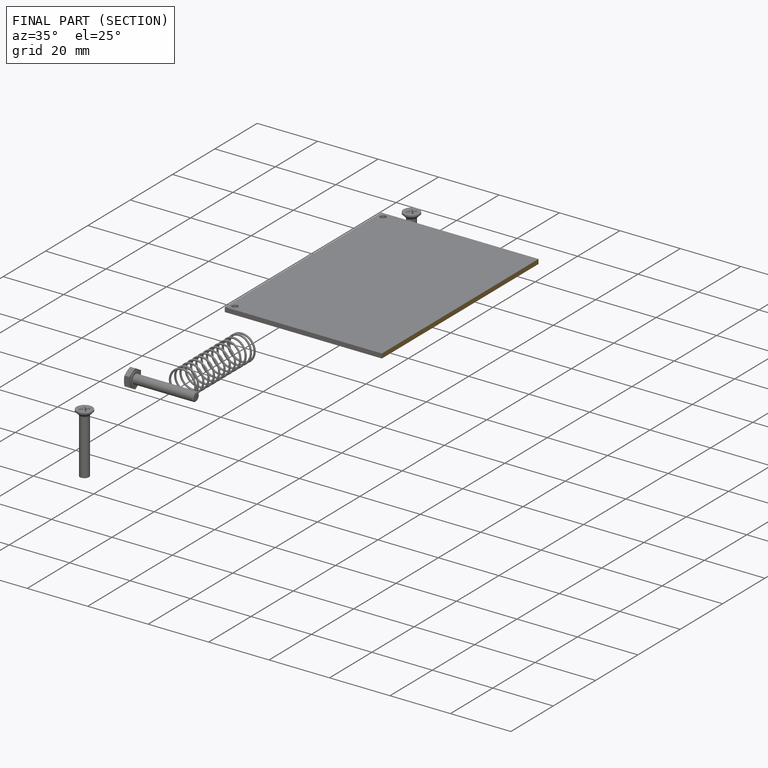
[diagram: finished part — half-section view (interior)]
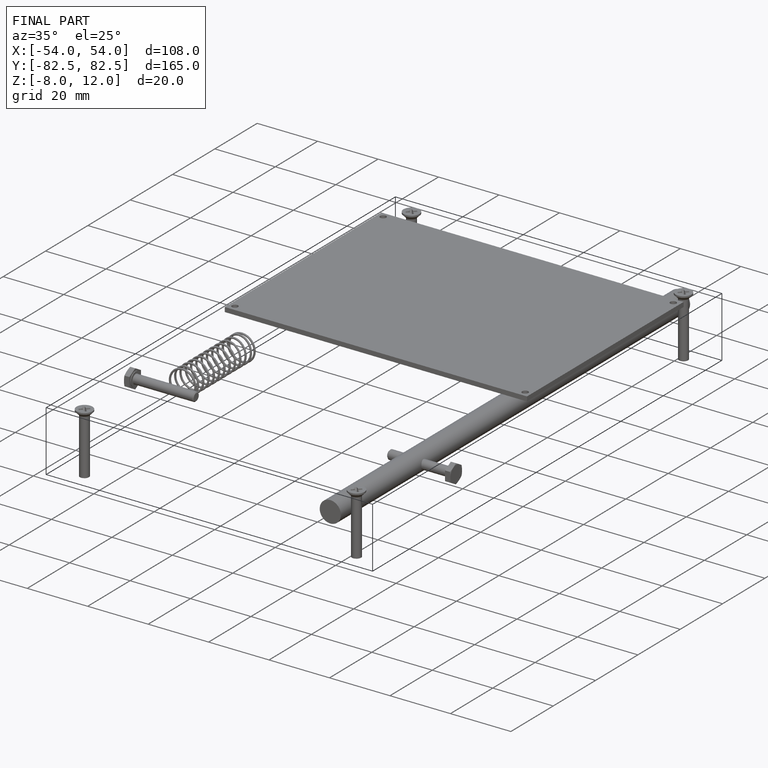
[diagram: finished part — iso view with bounding-box wireframe]
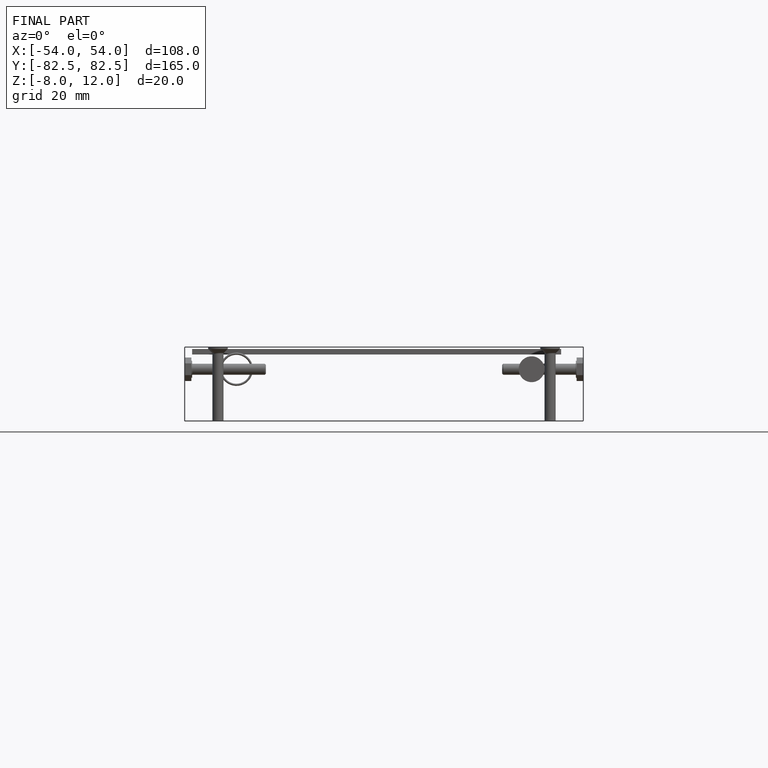
[diagram: finished part — front view with bounding-box wireframe]
